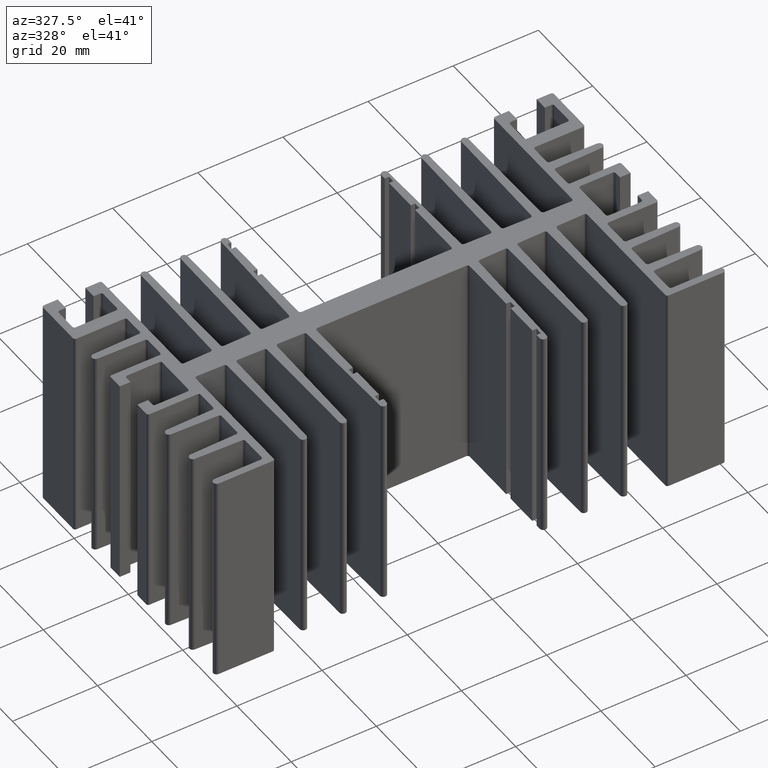
[diagram: clean part render]
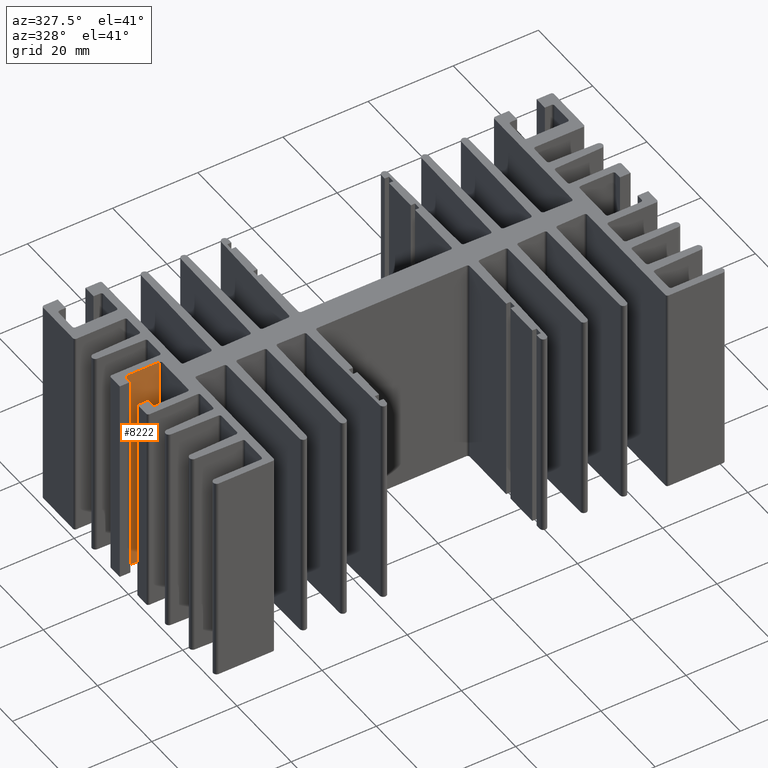
[diagram: same view with one face highlighted and labeled with its STEP entity id]
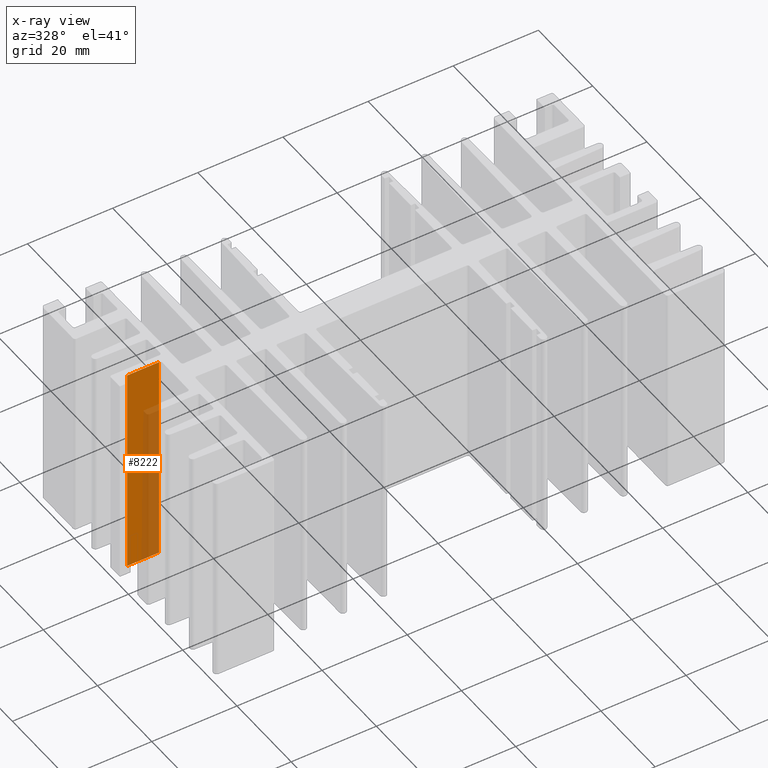
[diagram: x-ray of the same camera — body ghosted, the highlighted face saturated]
A machine part, auxiliary view. The second image highlights one B-rep face of the part: STEP entity #8222.
The next image is the same camera in x-ray: the body ghosted, the highlighted face saturated — about 40% of this face is hidden behind the body in this view.
In plain terms, the highlighted planar face has unit normal (-0, 1, 0).
Its self-contained STEP definition (entity closure, byte-faithful):
#193 = EDGE_LOOP ( 'NONE', ( #4393, #4961, #7960, #5788 ) ) ;
#225 = CARTESIAN_POINT ( 'NONE',  ( -56.99999988305459908, 5.221919376355589115, 50.00000000000000000 ) ) ;
#232 = CARTESIAN_POINT ( 'NONE',  ( -49.49999988305459908, 5.221919376355589115, 50.00000000000000000 ) ) ;
#354 = CARTESIAN_POINT ( 'NONE',  ( -56.99999988305459908, 5.221919376355589115, 50.00000000000000000 ) ) ;
#446 = CARTESIAN_POINT ( 'NONE',  ( -56.99999988305459908, 5.221919376355589115, 50.00000000000000000 ) ) ;
#549 = CARTESIAN_POINT ( 'NONE',  ( -56.99999988305459908, 5.221919376355589115, 50.00000000000000000 ) ) ;
#696 = CARTESIAN_POINT ( 'NONE',  ( -56.99999988305459908, 5.221919376355589115, 0.0000000000000000000 ) ) ;
#1263 = EDGE_CURVE ( 'NONE', #2983, #7000, #6212, .T. ) ;
#1746 = AXIS2_PLACEMENT_3D ( 'NONE', #549, #3119, #5688 ) ;
#2029 = VECTOR ( 'NONE', #3012, 1000.000000000000000 ) ;
#2186 = VECTOR ( 'NONE', #7394, 1000.000000000000000 ) ;
#2241 = LINE ( 'NONE', #4817, #2186 ) ;
#2281 = VERTEX_POINT ( 'NONE', #696 ) ;
#2809 = DIRECTION ( 'NONE',  ( 0.0000000000000000000, 0.0000000000000000000, -1.000000000000000000 ) ) ;
#2842 = EDGE_CURVE ( 'NONE', #2983, #2281, #6124, .T. ) ;
#2931 = DIRECTION ( 'NONE',  ( 0.0000000000000000000, 0.0000000000000000000, -1.000000000000000000 ) ) ;
#2959 = VECTOR ( 'NONE', #2809, 1000.000000000000000 ) ;
#2983 = VERTEX_POINT ( 'NONE', #225 ) ;
#3012 = DIRECTION ( 'NONE',  ( 1.000000000000000000, 0.0000000000000000000, 0.0000000000000000000 ) ) ;
#3119 = DIRECTION ( 'NONE',  ( -0.0000000000000000000, 1.000000000000000000, 0.0000000000000000000 ) ) ;
#3750 = FACE_OUTER_BOUND ( 'NONE', #193, .T. ) ;
#4266 = CARTESIAN_POINT ( 'NONE',  ( -49.49999988305459908, 5.221919376355589115, 50.00000000000000000 ) ) ;
#4393 = ORIENTED_EDGE ( 'NONE', *, *, #4700, .T. ) ;
#4426 = CARTESIAN_POINT ( 'NONE',  ( -49.49999988305459908, 5.221919376355589115, 0.0000000000000000000 ) ) ;
#4700 = EDGE_CURVE ( 'NONE', #2281, #6681, #2241, .T. ) ;
#4817 = CARTESIAN_POINT ( 'NONE',  ( -56.99999988305459908, 5.221919376355589115, 0.0000000000000000000 ) ) ;
#4961 = ORIENTED_EDGE ( 'NONE', *, *, #7676, .F. ) ;
#5688 = DIRECTION ( 'NONE',  ( 1.000000000000000000, 0.0000000000000000000, 0.0000000000000000000 ) ) ;
#5788 = ORIENTED_EDGE ( 'NONE', *, *, #2842, .T. ) ;
#6002 = LINE ( 'NONE', #232, #2959 ) ;
#6124 = LINE ( 'NONE', #354, #8128 ) ;
#6212 = LINE ( 'NONE', #446, #2029 ) ;
#6316 = PLANE ( 'NONE',  #1746 ) ;
#6681 = VERTEX_POINT ( 'NONE', #4426 ) ;
#7000 = VERTEX_POINT ( 'NONE', #4266 ) ;
#7394 = DIRECTION ( 'NONE',  ( 1.000000000000000000, 0.0000000000000000000, 0.0000000000000000000 ) ) ;
#7676 = EDGE_CURVE ( 'NONE', #7000, #6681, #6002, .T. ) ;
#7960 = ORIENTED_EDGE ( 'NONE', *, *, #1263, .F. ) ;
#8128 = VECTOR ( 'NONE', #2931, 1000.000000000000000 ) ;
#8222 = ADVANCED_FACE ( 'NONE', ( #3750 ), #6316, .F. ) ;